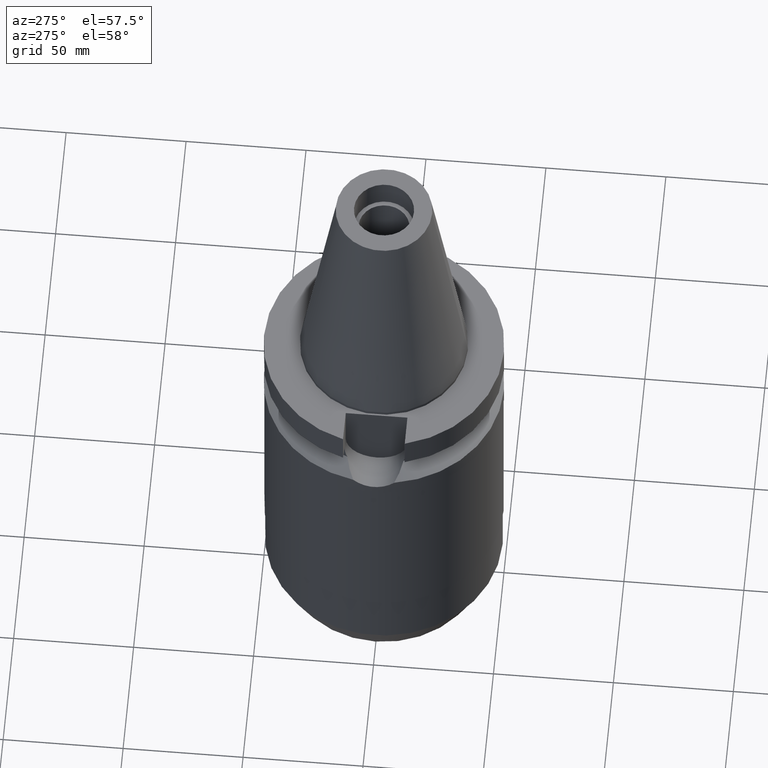
[diagram: clean part render]
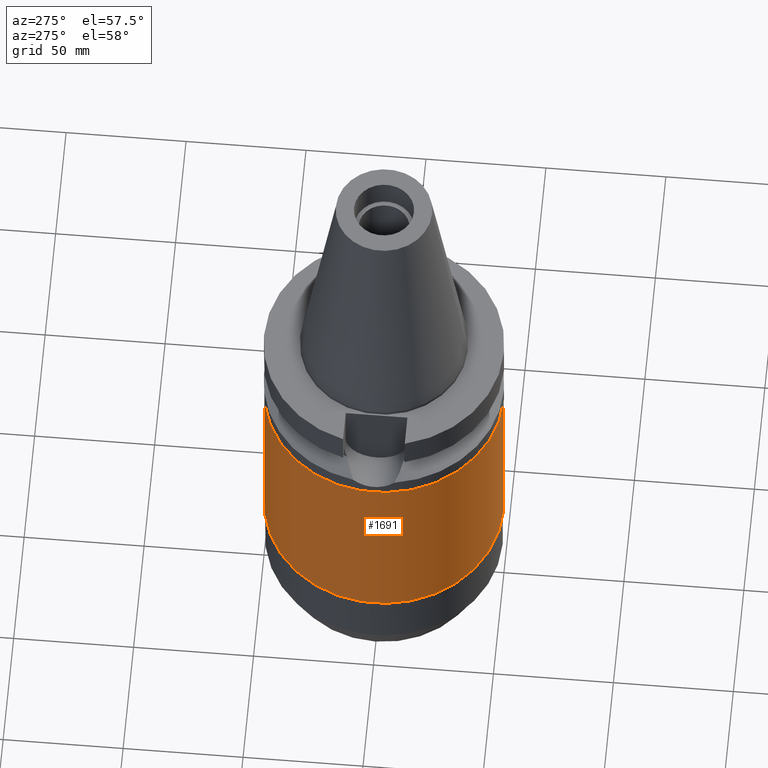
[diagram: same view with one face highlighted and labeled with its STEP entity id]
A machine part, auxiliary view. The second image highlights one B-rep face of the part: STEP entity #1691.
In plain terms, the highlighted cylindrical surface (partial cylindrical patch) has radius 49.85 mm, axis along (0, 0, 1).
Its self-contained STEP definition (entity closure, byte-faithful):
#648=CARTESIAN_POINT('',(0.E0,0.E0,-3.8E1));
#649=DIRECTION('',(0.E0,0.E0,-1.E0));
#650=DIRECTION('',(0.E0,-1.E0,0.E0));
#651=AXIS2_PLACEMENT_3D('',#648,#649,#650);
#664=DIRECTION('',(0.E0,0.E0,-1.E0));
#665=VECTOR('',#664,8.59E1);
#666=CARTESIAN_POINT('',(0.E0,-4.985E1,-3.8E1));
#667=LINE('',#666,#665);
#671=DIRECTION('',(0.E0,0.E0,-1.E0));
#672=VECTOR('',#671,8.59E1);
#673=CARTESIAN_POINT('',(0.E0,4.985E1,-3.8E1));
#674=LINE('',#673,#672);
#686=CARTESIAN_POINT('',(0.E0,0.E0,-1.239E2));
#687=DIRECTION('',(0.E0,0.E0,1.E0));
#688=DIRECTION('',(0.E0,1.E0,0.E0));
#689=AXIS2_PLACEMENT_3D('',#686,#687,#688);
#1149=CARTESIAN_POINT('',(0.E0,-4.985E1,-3.8E1));
#1150=CARTESIAN_POINT('',(0.E0,4.985E1,-3.8E1));
#1151=VERTEX_POINT('',#1149);
#1152=VERTEX_POINT('',#1150);
#1153=CARTESIAN_POINT('',(0.E0,4.985E1,-1.239E2));
#1154=VERTEX_POINT('',#1153);
#1155=CARTESIAN_POINT('',(0.E0,-4.985E1,-1.239E2));
#1156=VERTEX_POINT('',#1155);
#1677=CARTESIAN_POINT('',(0.E0,0.E0,-1.8044E2));
#1678=DIRECTION('',(0.E0,0.E0,1.E0));
#1679=DIRECTION('',(0.E0,1.E0,0.E0));
#1680=AXIS2_PLACEMENT_3D('',#1677,#1678,#1679);
#1681=CYLINDRICAL_SURFACE('',#1680,4.985E1);
#1683=ORIENTED_EDGE('',*,*,#1682,.F.);
#1684=ORIENTED_EDGE('',*,*,#1670,.F.);
#1686=ORIENTED_EDGE('',*,*,#1685,.T.);
#1688=ORIENTED_EDGE('',*,*,#1687,.F.);
#1689=EDGE_LOOP('',(#1683,#1684,#1686,#1688));
#1690=FACE_OUTER_BOUND('',#1689,.F.);
#652=CIRCLE('',#651,4.985E1);
#690=CIRCLE('',#689,4.985E1);
#1670=EDGE_CURVE('',#1151,#1152,#652,.T.);
#1682=EDGE_CURVE('',#1152,#1154,#674,.T.);
#1685=EDGE_CURVE('',#1151,#1156,#667,.T.);
#1687=EDGE_CURVE('',#1154,#1156,#690,.T.);
#1691=ADVANCED_FACE('',(#1690),#1681,.T.);